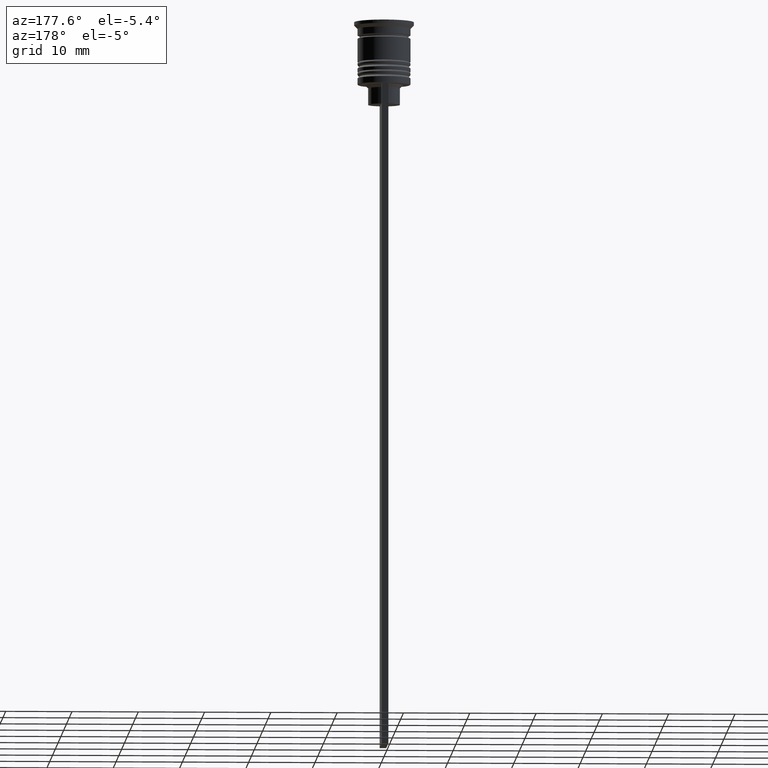
[diagram: clean part render]
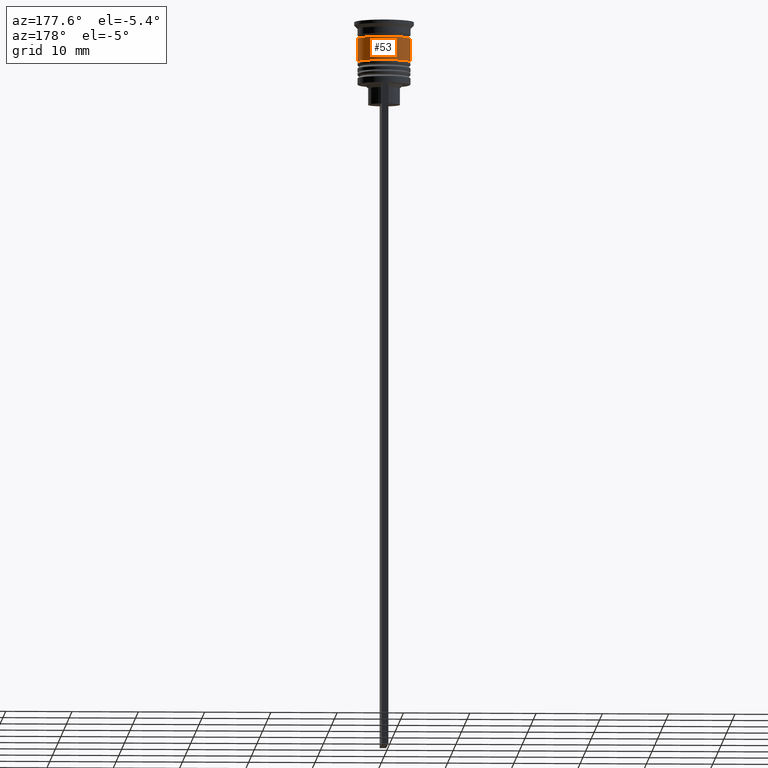
[diagram: same view with one face highlighted and labeled with its STEP entity id]
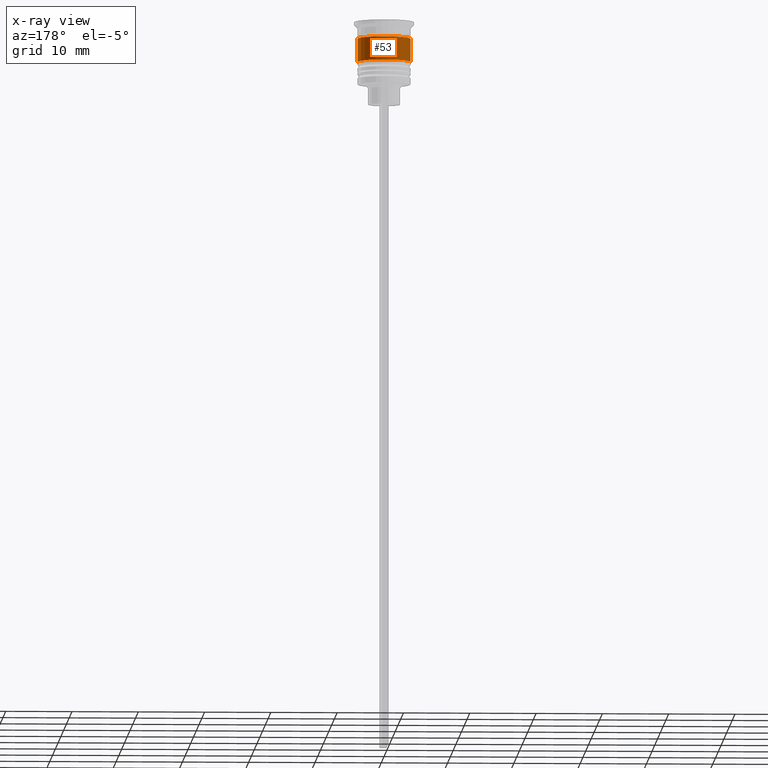
[diagram: x-ray of the same camera — body ghosted, the highlighted face saturated]
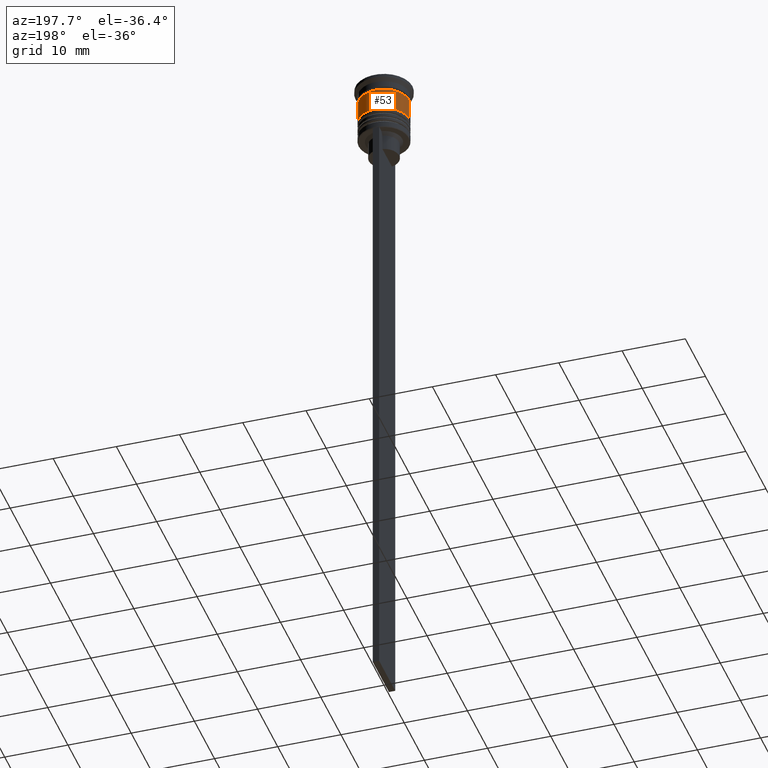
[diagram: same view with one face highlighted and labeled with its STEP entity id]
A machine part, auxiliary view. The second image highlights one B-rep face of the part: STEP entity #53.
The next image is the same camera in x-ray: the body ghosted, the highlighted face saturated — about 0% of this face is hidden behind the body in this view.
A second angle (auxiliary view) of the same face is appended — the face is thin or edge-on in the first view.
In plain terms, the highlighted cylindrical surface (edge-blend (fillet) strip) has radius 4 mm, axis along (-0, -0, 1).
Its self-contained STEP definition (entity closure, byte-faithful):
#19 = DIRECTION ( 'NONE',  ( 1.000000000000000000, 0.000000000000000000, 0.000000000000000000 ) ) ;
#33 = CARTESIAN_POINT ( 'NONE',  ( -4.000000000000000000, 4.898587196589412829E-16, -2.500000000000000000 ) ) ;
#53 = ADVANCED_FACE ( 'NONE', ( #1110 ), #2122, .T. ) ;
#68 = ORIENTED_EDGE ( 'NONE', *, *, #1439, .T. ) ;
#268 = VERTEX_POINT ( 'NONE', #33 ) ;
#355 = AXIS2_PLACEMENT_3D ( 'NONE', #772, #1335, #2084 ) ;
#399 = AXIS2_PLACEMENT_3D ( 'NONE', #2150, #1999, #19 ) ;
#454 = VERTEX_POINT ( 'NONE', #1533 ) ;
#463 = ORIENTED_EDGE ( 'NONE', *, *, #871, .F. ) ;
#539 = EDGE_CURVE ( 'NONE', #1389, #268, #875, .T. ) ;
#540 = CARTESIAN_POINT ( 'NONE',  ( -4.000000000000000000, 4.898587196589412829E-16, 0.000000000000000000 ) ) ;
#642 = AXIS2_PLACEMENT_3D ( 'NONE', #1503, #747, #719 ) ;
#719 = DIRECTION ( 'NONE',  ( 1.000000000000000000, 0.000000000000000000, 0.000000000000000000 ) ) ;
#747 = DIRECTION ( 'NONE',  ( -0.000000000000000000, -0.000000000000000000, 1.000000000000000000 ) ) ;
#772 = CARTESIAN_POINT ( 'NONE',  ( 0.000000000000000000, 0.000000000000000000, 0.000000000000000000 ) ) ;
#841 = VECTOR ( 'NONE', #1408, 1000.000000000000000 ) ;
#871 = EDGE_CURVE ( 'NONE', #1178, #1389, #1640, .T. ) ;
#875 = CIRCLE ( 'NONE', #399, 4.000000000000000000 ) ;
#1110 = FACE_OUTER_BOUND ( 'NONE', #1997, .T. ) ;
#1158 = CIRCLE ( 'NONE', #642, 4.000000000000000888 ) ;
#1178 = VERTEX_POINT ( 'NONE', #2175 ) ;
#1281 = VECTOR ( 'NONE', #1722, 1000.000000000000000 ) ;
#1335 = DIRECTION ( 'NONE',  ( -0.000000000000000000, -0.000000000000000000, 1.000000000000000000 ) ) ;
#1389 = VERTEX_POINT ( 'NONE', #1895 ) ;
#1408 = DIRECTION ( 'NONE',  ( -0.000000000000000000, -0.000000000000000000, 1.000000000000000000 ) ) ;
#1439 = EDGE_CURVE ( 'NONE', #454, #268, #2301, .T. ) ;
#1455 = CARTESIAN_POINT ( 'NONE',  ( 4.000000000000000000, 0.000000000000000000, 0.000000000000000000 ) ) ;
#1469 = ORIENTED_EDGE ( 'NONE', *, *, #539, .F. ) ;
#1503 = CARTESIAN_POINT ( 'NONE',  ( 0.000000000000000000, 0.000000000000000000, -6.000000000000000000 ) ) ;
#1533 = CARTESIAN_POINT ( 'NONE',  ( -4.000000000000000888, 4.898587196589413815E-16, -6.000000000000000000 ) ) ;
#1636 = ORIENTED_EDGE ( 'NONE', *, *, #2149, .T. ) ;
#1640 = LINE ( 'NONE', #1455, #841 ) ;
#1722 = DIRECTION ( 'NONE',  ( -0.000000000000000000, -0.000000000000000000, 1.000000000000000000 ) ) ;
#1895 = CARTESIAN_POINT ( 'NONE',  ( 4.000000000000000000, 0.000000000000000000, -2.500000000000000000 ) ) ;
#1997 = EDGE_LOOP ( 'NONE', ( #1636, #68, #1469, #463 ) ) ;
#1999 = DIRECTION ( 'NONE',  ( -0.000000000000000000, -0.000000000000000000, 1.000000000000000000 ) ) ;
#2084 = DIRECTION ( 'NONE',  ( 1.000000000000000000, 0.000000000000000000, 0.000000000000000000 ) ) ;
#2122 = CYLINDRICAL_SURFACE ( 'NONE', #355, 4.000000000000000000 ) ;
#2149 = EDGE_CURVE ( 'NONE', #1178, #454, #1158, .T. ) ;
#2150 = CARTESIAN_POINT ( 'NONE',  ( 0.000000000000000000, 0.000000000000000000, -2.500000000000000000 ) ) ;
#2175 = CARTESIAN_POINT ( 'NONE',  ( 4.000000000000000888, 0.000000000000000000, -6.000000000000000000 ) ) ;
#2301 = LINE ( 'NONE', #540, #1281 ) ;